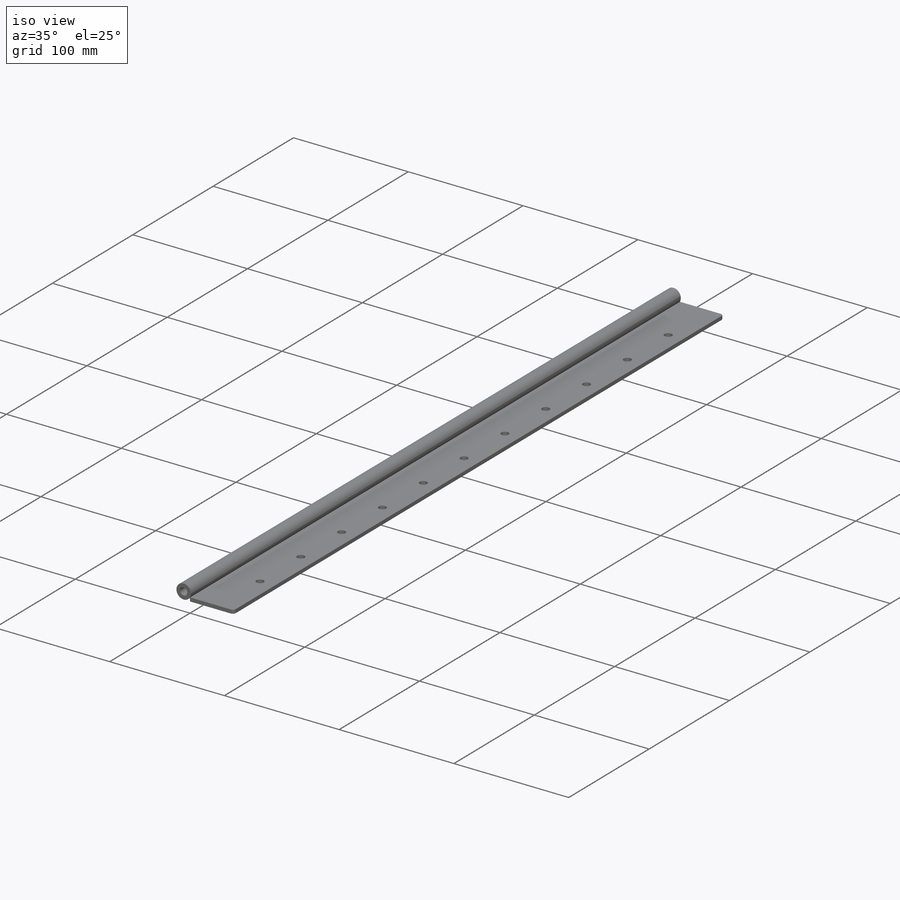
[diagram: iso view]
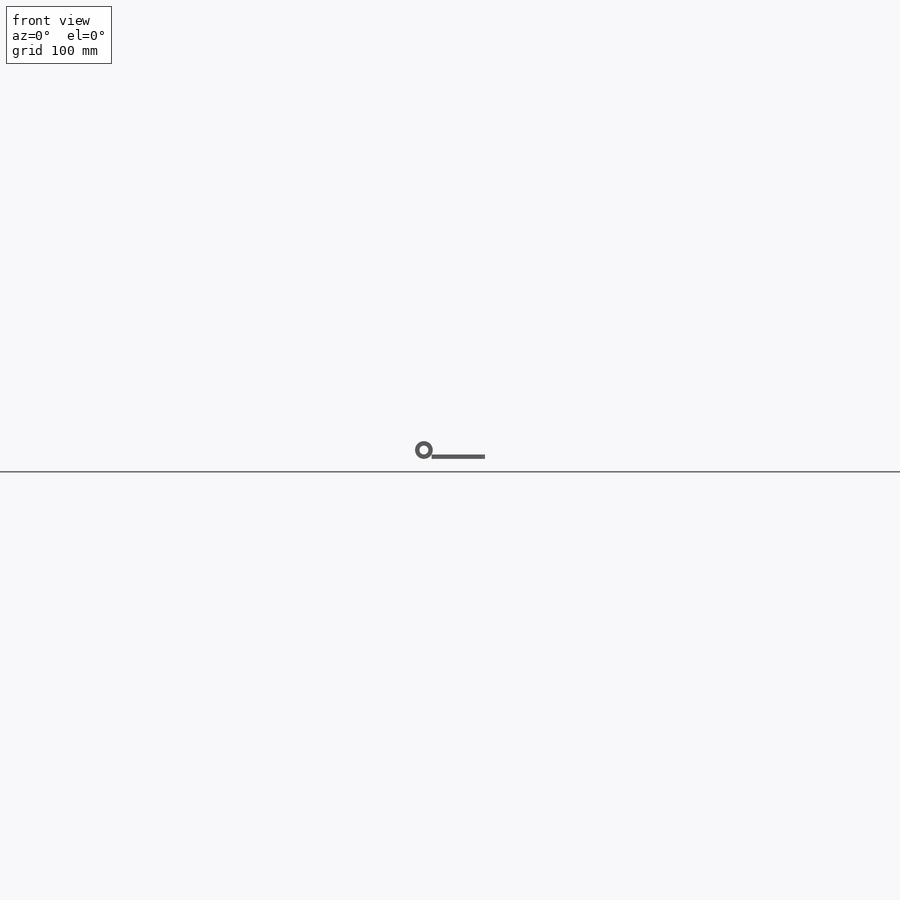
[diagram: front view]
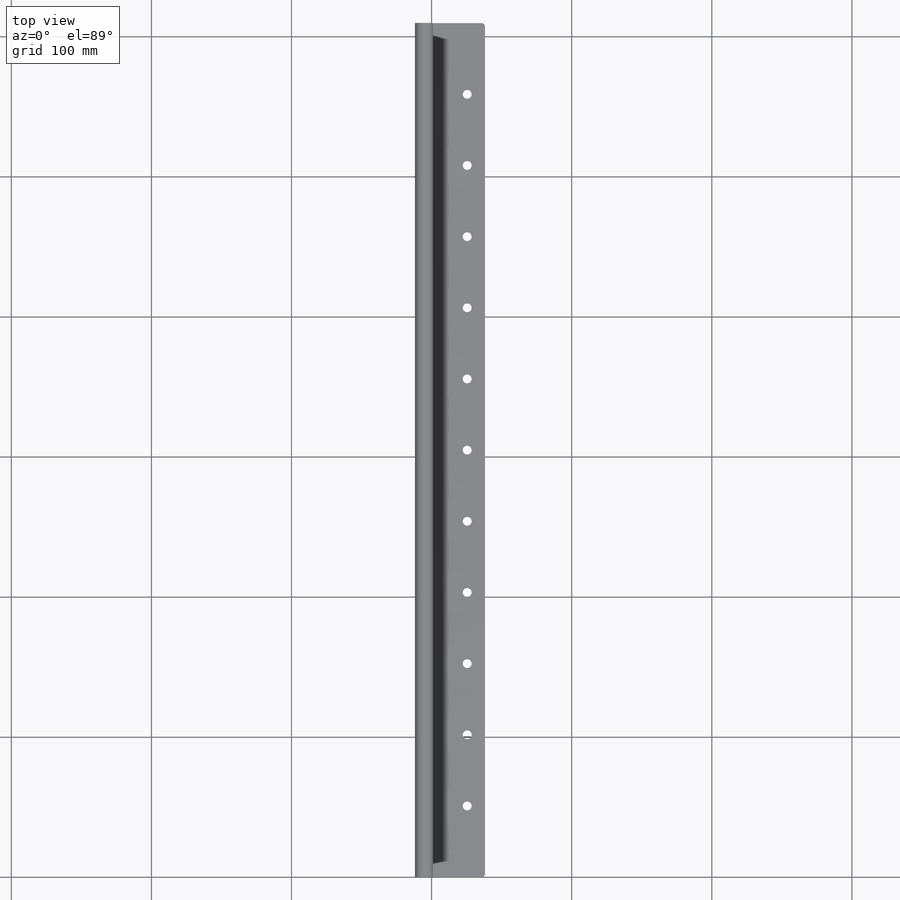
[diagram: top view]
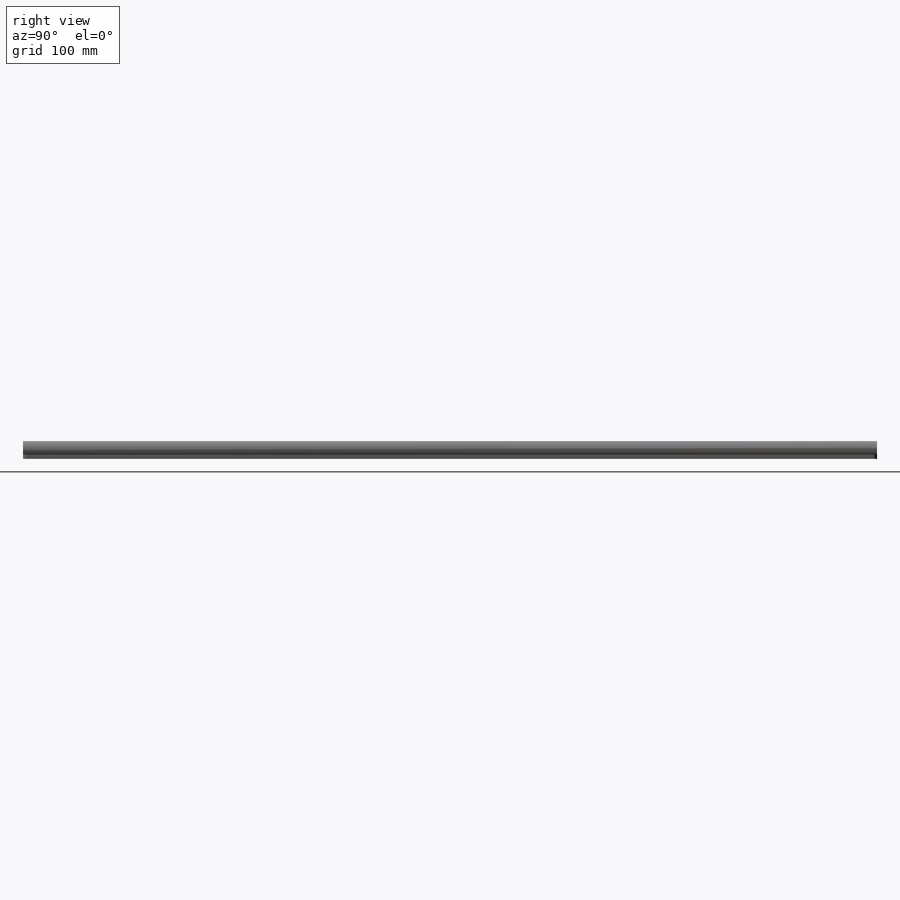
[diagram: right view]
SOLIDWORKS PART (.sldprt)
format: sldprt  version: not decoded by parser v0  size: 205,824 bytes
history: native  units: mm
features: sketch x3, extrude x2, material x1, cut_extrude x1, fillet x1 (+11 scaffold rows collapsed)
feature tree (19):
  scaffold x11  (default folders/planes/origin — collapsed)
  material  "Material <not specified>"
  sketch  "Sketch1"  dims[D1=38.1mm D2=609.6mm]
  extrude  "Boss-Extrude1"  Depth=3.175mm
  sketch  "Sketch2"  dims[c1.D4=6.35mm c1.D3=6.35mm c1.D1=12.7mm c1.D2=12.7mm c2.D3=50.8mm c2.D5=8.0 c2.D6=8.0 c2.D7=3.0 c2.D8=3.0]
  cut_extrude  "Cut-Extrude1"  [1 undecoded]
  fillet  "Fillet1"  Radius=2.54mm
  sketch  "Sketch3"  dims[D1=12.7mm D2=6.35mm]
  extrude  "Boss-Extrude2"  Depth=609.6mm
decode coverage: 6 of 7 modeling features carry decoded parameters
note: 1 parameter value undecoded
note: suppression state not decoded; provenance and decode notes live in map.json
